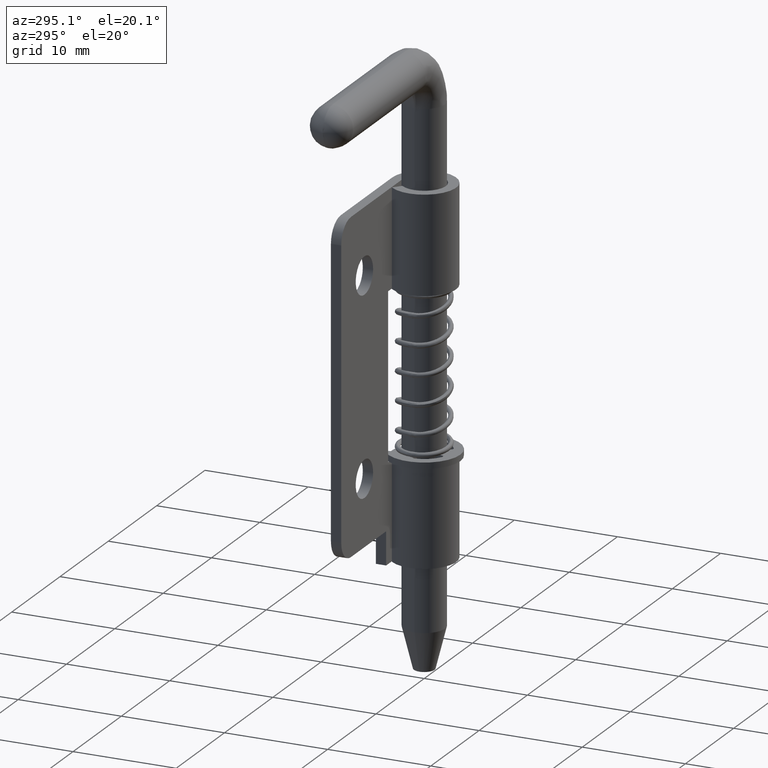
[diagram: clean part render]
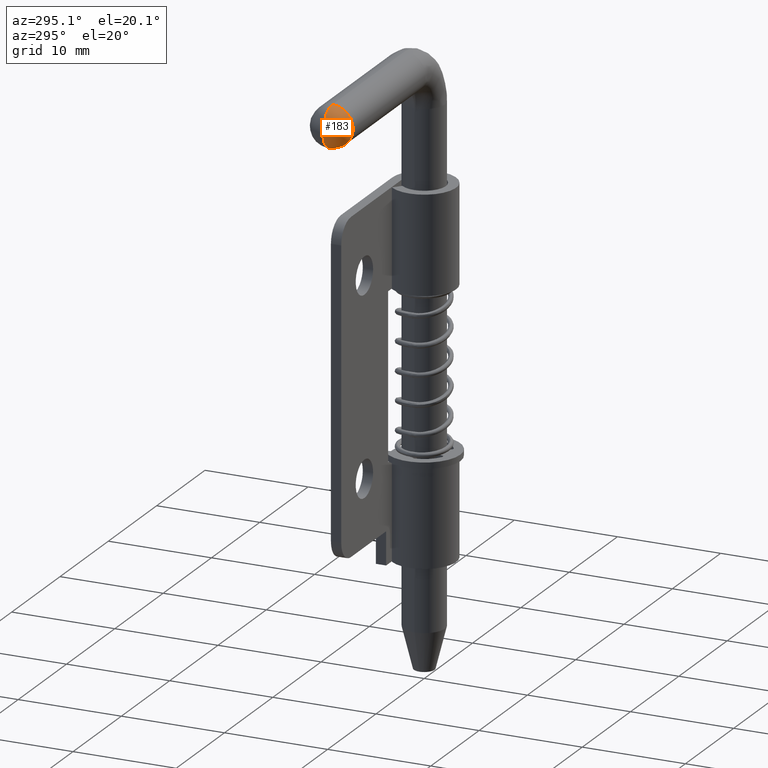
[diagram: same view with one face highlighted and labeled with its STEP entity id]
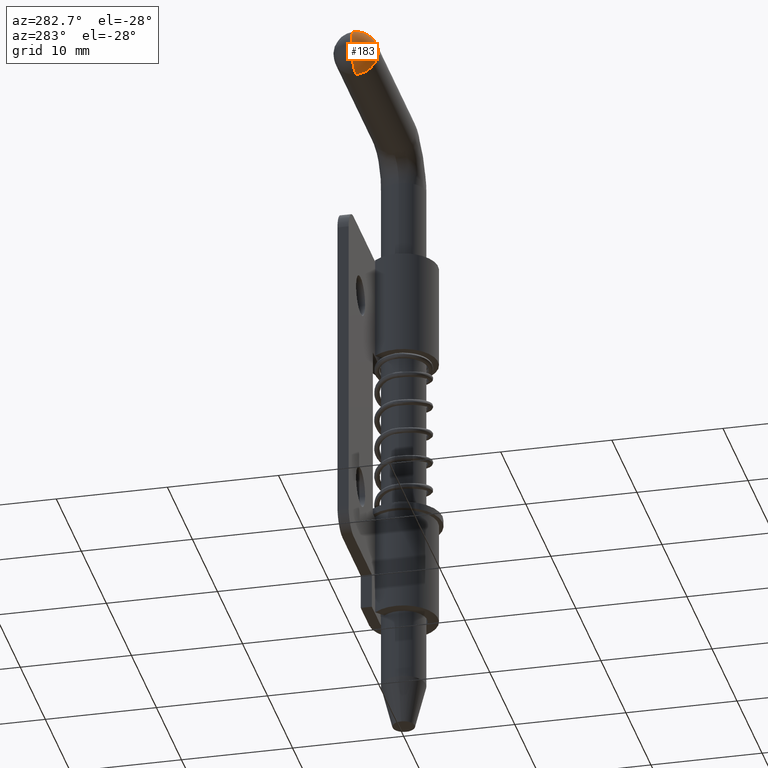
[diagram: same view with one face highlighted and labeled with its STEP entity id]
A machine part, auxiliary view. The second image highlights one B-rep face of the part: STEP entity #183.
A second angle (auxiliary view) of the same face is appended — the face is thin or edge-on in the first view.
In plain terms, the highlighted spherical surface has radius 2 mm.
Its self-contained STEP definition (entity closure, byte-faithful):
#183=ADVANCED_FACE('',(#579),#578,.T.);
#578=SPHERICAL_SURFACE('',#1360,2.00000000000E+00);
#579=FACE_OUTER_BOUND('',#1361,.T.);
#1357=CARTESIAN_POINT('',(-1.90000000000E+01,0.00000000000E+00,4.00000000011E+00));
#1358=DIRECTION('',(-1.00000000000E+00,-0.00000000000E+00,-0.00000000000E+00));
#1359=DIRECTION('',(-0.00000000000E+00,-1.22460635382E-16,-1.00000000000E+00));
#1360=AXIS2_PLACEMENT_3D('',#1357,#1358,#1359);
#1361=EDGE_LOOP('',(#3287,#3288,#3289));
#3287=ORIENTED_EDGE('',*,*,#3640,.F.);
#3288=ORIENTED_EDGE('',*,*,#3633,.T.);
#3289=ORIENTED_EDGE('',*,*,#3641,.T.);
#3633=EDGE_CURVE('',#4333,#4340,#4353,.T.);
#3640=EDGE_CURVE('',#4333,#4397,#4398,.T.);
#3641=EDGE_CURVE('',#4340,#4397,#4404,.T.);
#4333=VERTEX_POINT('',#5595);
#4340=VERTEX_POINT('',#5598);
#4353=CIRCLE('',#5608,2.00000000011E+00);
#4397=VERTEX_POINT('',#5627);
#4398=(BOUNDED_CURVE() B_SPLINE_CURVE(2,(#5628,#5629,#5630),.UNSPECIFIED.,.F.,.F.) B_SPLINE_CURVE_WITH_KNOTS((3,3),(0.00000000000E+00,1.00000000000E+00),.UNSPECIFIED.) CURVE() GEOMETRIC_REPRESENTATION_ITEM() RATIONAL_B_SPLINE_CURVE((1.00000000000E+00,7.07106781187E-01,1.00000000000E+00)) REPRESENTATION_ITEM('') );
#4404=(BOUNDED_CURVE() B_SPLINE_CURVE(2,(#5631,#5632,#5633),.UNSPECIFIED.,.F.,.F.) B_SPLINE_CURVE_WITH_KNOTS((3,3),(0.00000000000E+00,1.00000000000E+00),.UNSPECIFIED.) CURVE() GEOMETRIC_REPRESENTATION_ITEM() RATIONAL_B_SPLINE_CURVE((7.50000000000E-01,5.30330085890E-01,7.50000000000E-01)) REPRESENTATION_ITEM('') );
#5595=CARTESIAN_POINT('',(-1.90000000000E+01,2.22044604925E-16,1.99999999989E+00));
#5598=CARTESIAN_POINT('',(-1.90000000000E+01,0.00000000000E+00,6.00000000011E+00));
#5605=CARTESIAN_POINT('',(-1.90000000000E+01,0.00000000000E+00,4.00000000000E+00));
#5606=DIRECTION('',(-1.00000000000E+00,0.00000000000E+00,0.00000000000E+00));
#5607=DIRECTION('',(0.00000000000E+00,-1.22460635382E-16,1.00000000000E+00));
#5608=AXIS2_PLACEMENT_3D('',#5605,#5606,#5607);
#5627=CARTESIAN_POINT('',(-2.10000000000E+01,-4.93038065763E-32,4.00000000011E+00));
#5628=CARTESIAN_POINT('',(-1.90000000000E+01,-2.44921270764E-16,2.00000000011E+00));
#5629=CARTESIAN_POINT('',(-2.10000000000E+01,-2.44921270764E-16,2.00000000011E+00));
#5630=CARTESIAN_POINT('',(-2.10000000000E+01,-4.93038065763E-32,4.00000000011E+00));
#5631=CARTESIAN_POINT('',(-1.90000000000E+01,3.70074341542E-16,6.00000000011E+00));
#5632=CARTESIAN_POINT('',(-2.10000000000E+01,2.09345661158E-16,6.00000000011E+00));
#5633=CARTESIAN_POINT('',(-2.10000000000E+01,4.93038065763E-32,4.00000000011E+00));